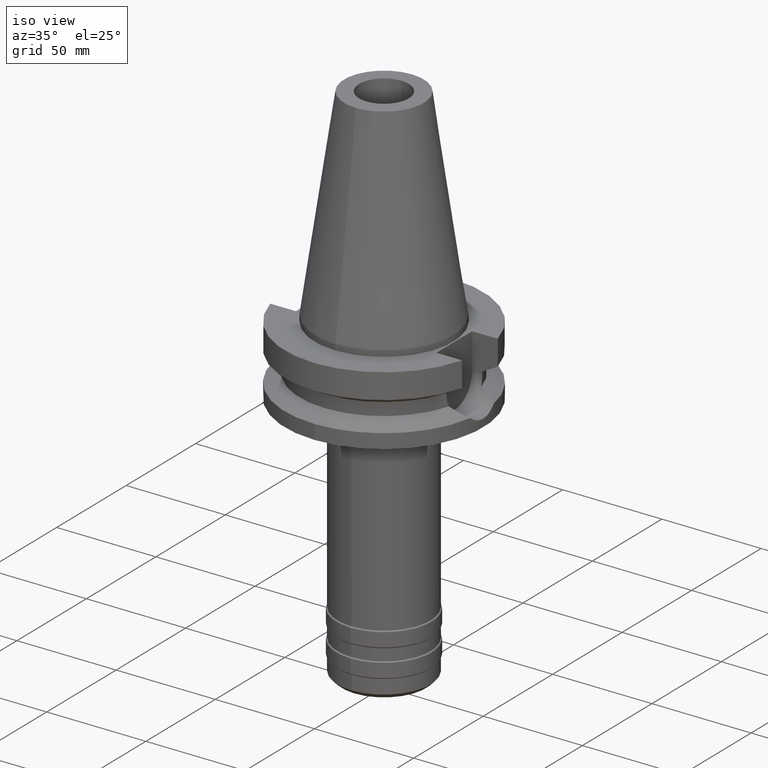
[diagram: clean part render]
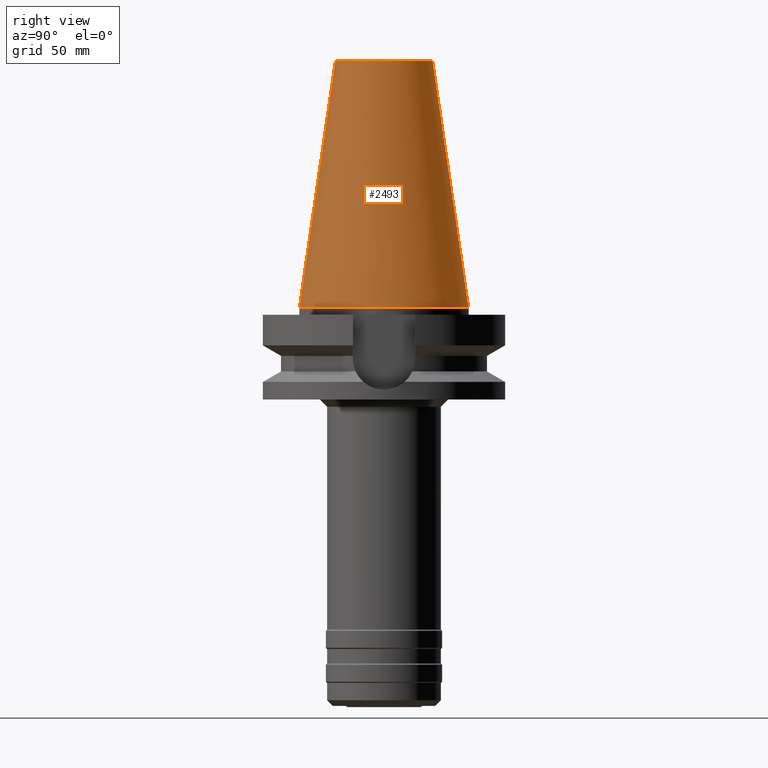
[diagram: tour spotlight — one face highlighted and labeled with its STEP entity id]
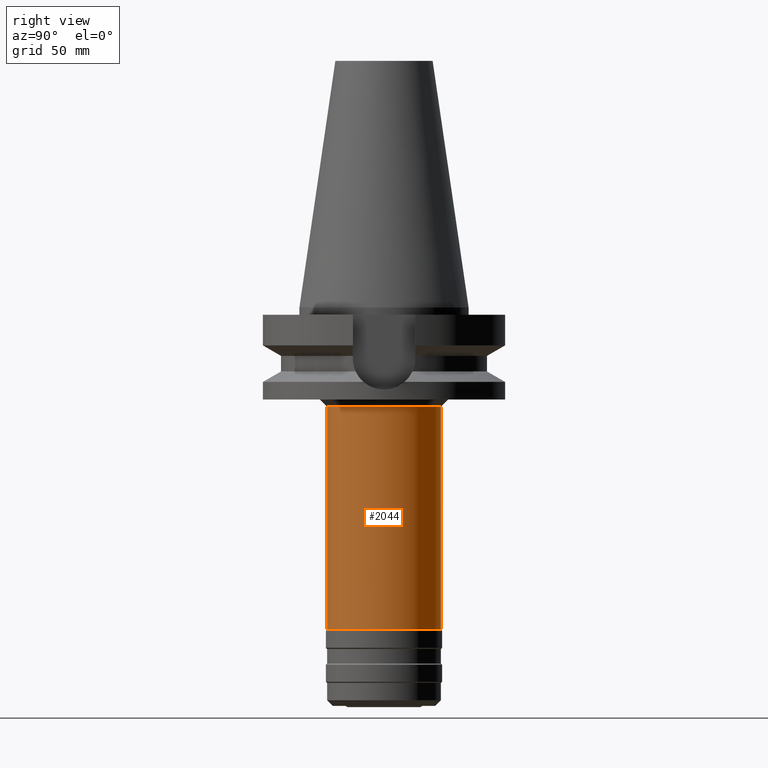
[diagram: tour spotlight — one face highlighted and labeled with its STEP entity id]
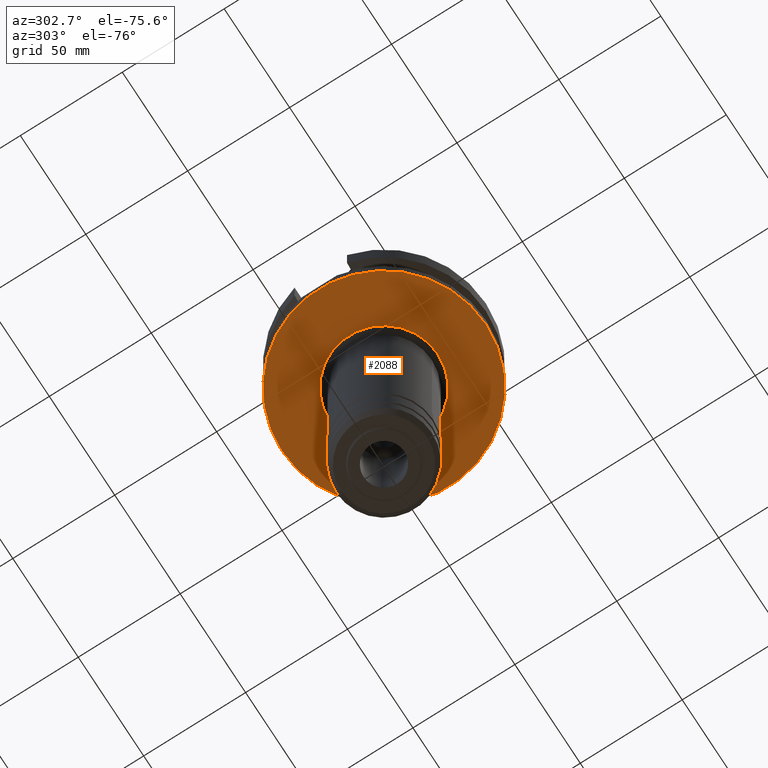
[diagram: tour spotlight — one face highlighted and labeled with its STEP entity id]
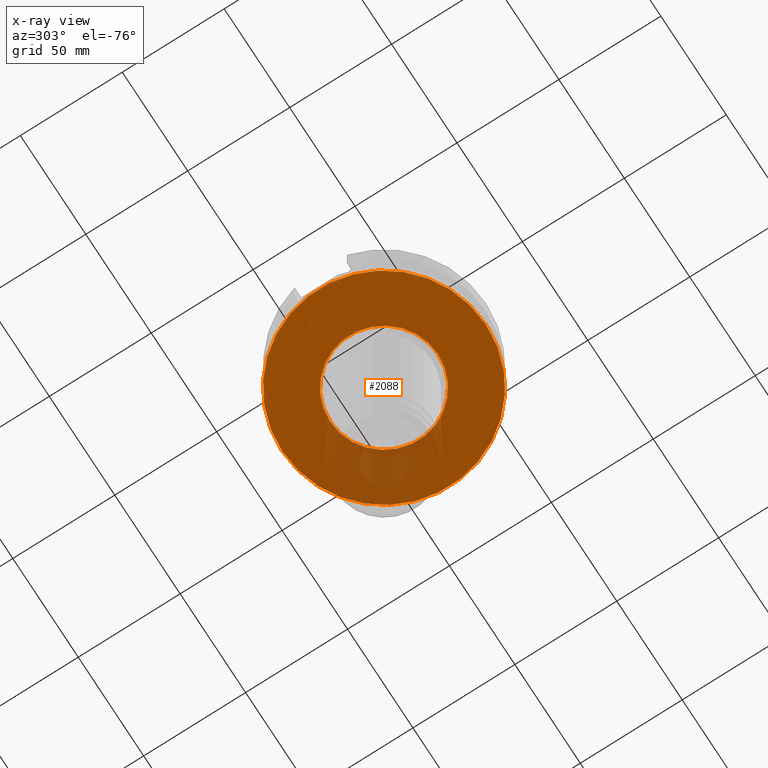
[diagram: x-ray of the same camera — body ghosted, this tour face saturated]
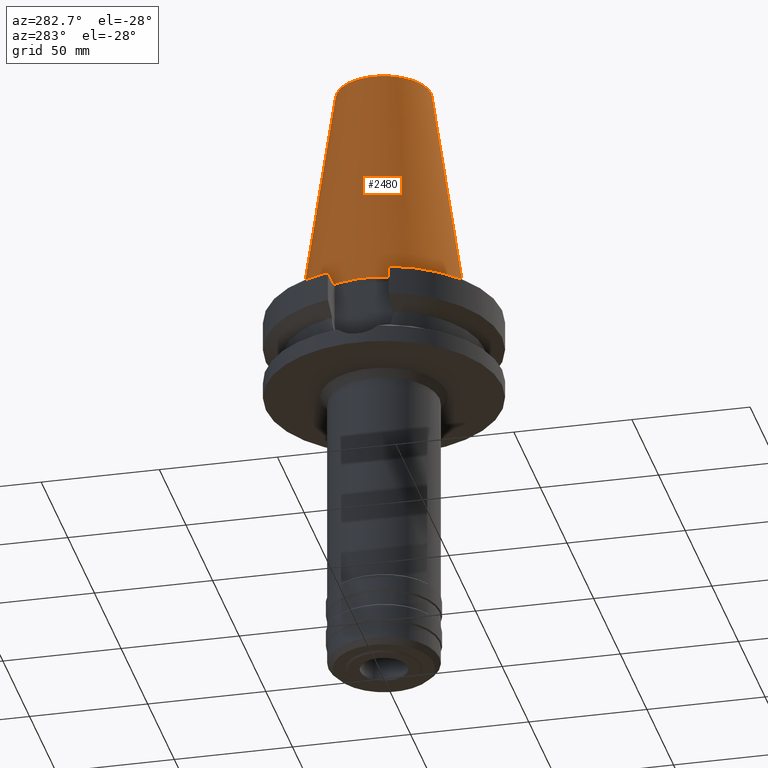
[diagram: tour spotlight — one face highlighted and labeled with its STEP entity id]
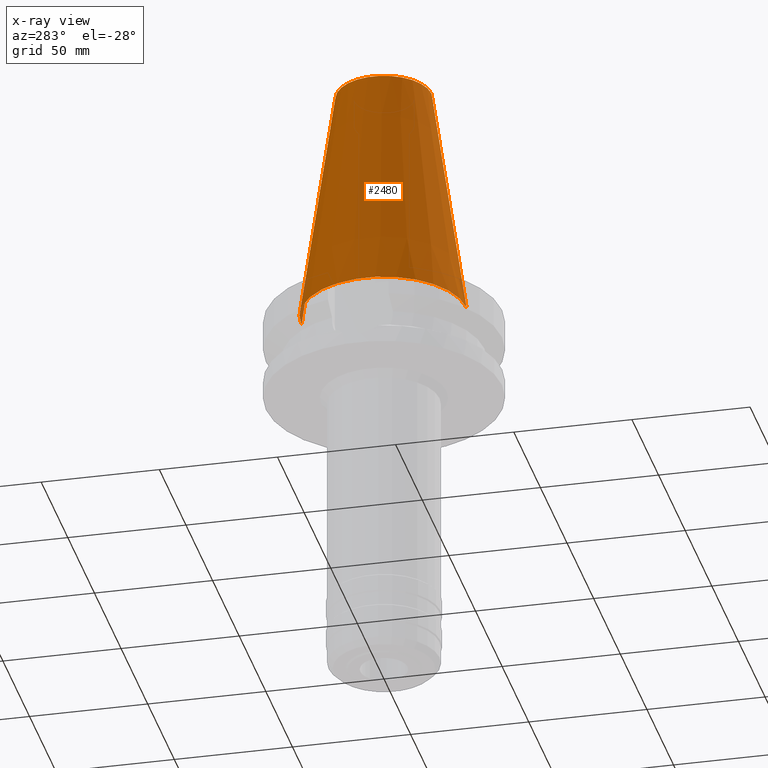
[diagram: x-ray of the same camera — body ghosted, this tour face saturated]
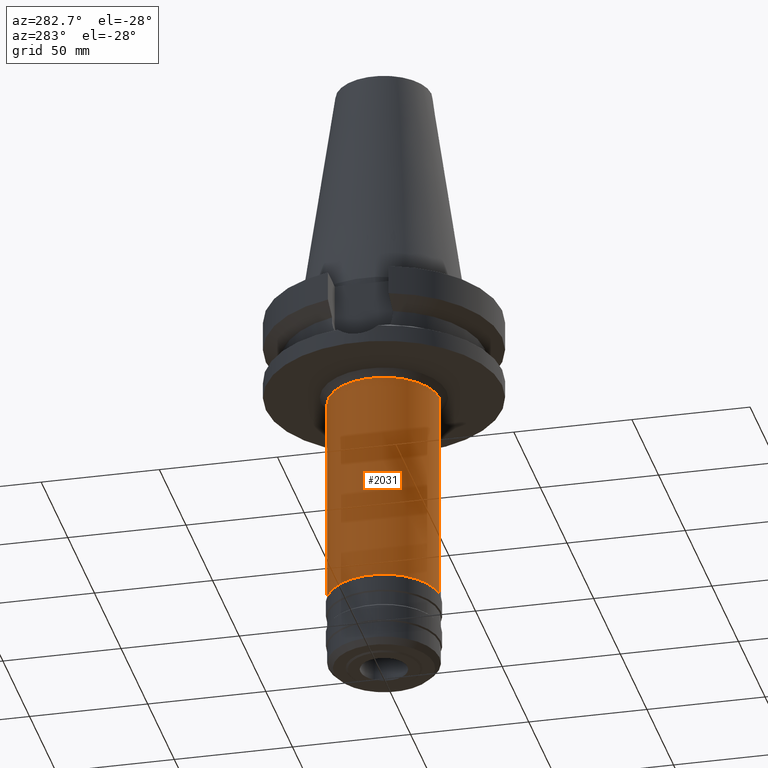
[diagram: tour spotlight — one face highlighted and labeled with its STEP entity id]
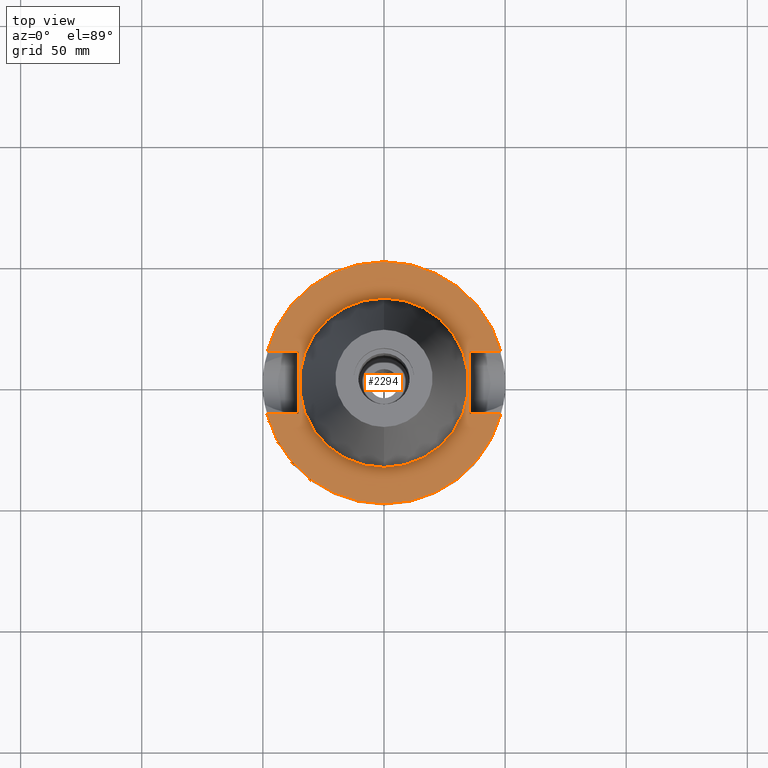
[diagram: tour spotlight — one face highlighted and labeled with its STEP entity id]
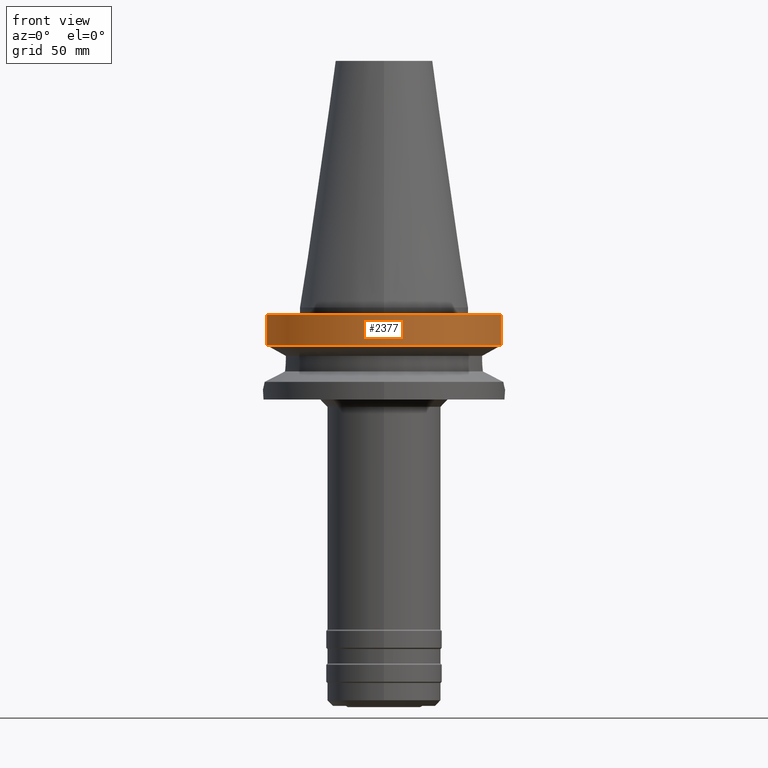
[diagram: tour spotlight — one face highlighted and labeled with its STEP entity id]
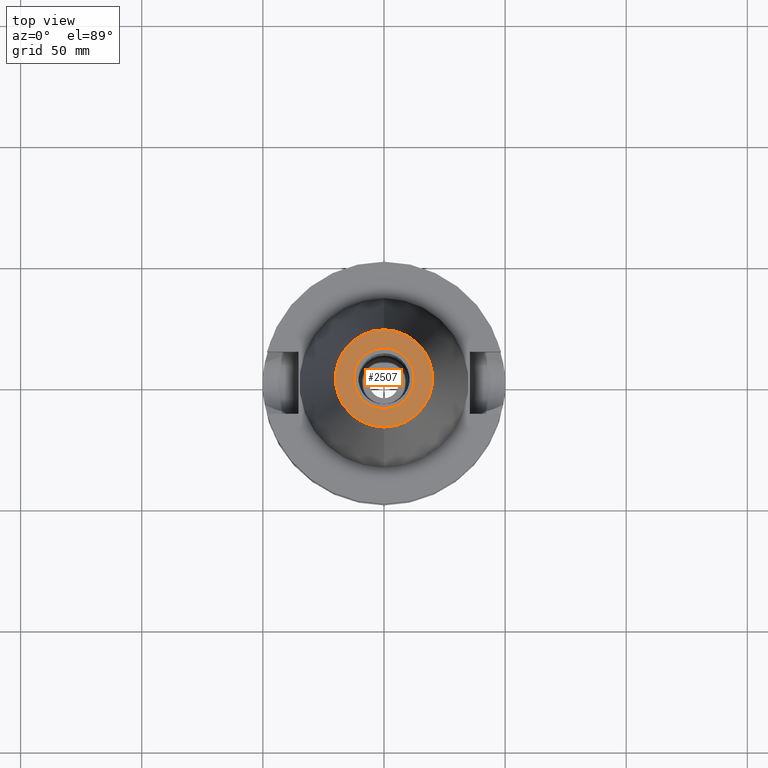
[diagram: tour spotlight — one face highlighted and labeled with its STEP entity id]
A machine part: a face-by-face anatomy tour. The part has 67 B-rep faces; the first image is the clean iso view, then the 8 largest visible faces are spotlighted one at a time (largest first), each with its STEP entity span.

Face 1 — right view, entity #2493. In plain terms, the highlighted conical surface has half-angle 8.297 deg.
Definition (entity closure, byte-faithful):
#1216=DIRECTION('',(0.E0,-1.443043893539E-1,-9.895333461856E-1));
#1217=VECTOR('',#1216,1.028767755957E2);
#1218=CARTESIAN_POINT('',(0.E0,-2.007942971896E1,1.018E2));
#1219=LINE('',#1218,#1217);
#1231=DIRECTION('',(0.E0,1.443043893539E-1,-9.895333461856E-1));
#1232=VECTOR('',#1231,1.028767755957E2);
#1233=CARTESIAN_POINT('',(0.E0,2.007942971896E1,1.018E2));
#1234=LINE('',#1233,#1232);
#1238=CARTESIAN_POINT('',(0.E0,1.847992019913E-14,6.252776074689E-13));
#1239=DIRECTION('',(0.E0,0.E0,-1.E0));
#1240=DIRECTION('',(0.E0,1.E0,0.E0));
#1241=AXIS2_PLACEMENT_3D('',#1238,#1239,#1240);
#1254=CARTESIAN_POINT('',(0.E0,1.847992019913E-14,1.018E2));
#1255=DIRECTION('',(0.E0,0.E0,-1.E0));
#1256=DIRECTION('',(0.E0,1.E0,0.E0));
#1257=AXIS2_PLACEMENT_3D('',#1254,#1255,#1256);
#1455=CARTESIAN_POINT('',(0.E0,3.4925E1,5.471179065353E-13));
#1456=VERTEX_POINT('',#1455);
#1457=CARTESIAN_POINT('',(0.E0,-3.4925E1,5.471179065353E-13));
#1458=VERTEX_POINT('',#1457);
#1459=CARTESIAN_POINT('',(0.E0,2.007942971896E1,1.018E2));
#1460=VERTEX_POINT('',#1459);
#1461=CARTESIAN_POINT('',(0.E0,-2.007942971896E1,1.018E2));
#1462=VERTEX_POINT('',#1461);
#2481=CARTESIAN_POINT('',(0.E0,1.847992019913E-14,5.09E1));
#2482=DIRECTION('',(0.E0,0.E0,-1.E0));
#2483=DIRECTION('',(0.E0,-1.E0,0.E0));
#2484=AXIS2_PLACEMENT_3D('',#2481,#2482,#2483);
#2485=CONICAL_SURFACE('',#2484,2.750221485948E1,8.297E0);
#2486=ORIENTED_EDGE('',*,*,#2471,.T.);
#2487=ORIENTED_EDGE('',*,*,#2448,.T.);
#2488=ORIENTED_EDGE('',*,*,#2475,.F.);
#2490=ORIENTED_EDGE('',*,*,#2489,.F.);
#2491=EDGE_LOOP('',(#2486,#2487,#2488,#2490));
#2492=FACE_OUTER_BOUND('',#2491,.F.);
#1242=CIRCLE('',#1241,3.4925E1);
#1258=CIRCLE('',#1257,2.007942971896E1);
#2448=EDGE_CURVE('',#1456,#1458,#1242,.T.);
#2471=EDGE_CURVE('',#1460,#1456,#1234,.T.);
#2475=EDGE_CURVE('',#1462,#1458,#1219,.T.);
#2489=EDGE_CURVE('',#1460,#1462,#1258,.T.);
#2493=ADVANCED_FACE('',(#2492),#2485,.T.);

Face 2 — right view, entity #2044. In plain terms, the highlighted cylindrical surface (partial cylindrical patch) has radius 23.5 mm, axis along (0, 0, -1).
Definition (entity closure, byte-faithful):
#563=CARTESIAN_POINT('',(0.E0,0.E0,-1.33E2));
#564=DIRECTION('',(0.E0,0.E0,1.E0));
#565=DIRECTION('',(0.E0,-1.E0,0.E0));
#566=AXIS2_PLACEMENT_3D('',#563,#564,#565);
#594=DIRECTION('',(0.E0,0.E0,-1.E0));
#595=VECTOR('',#594,9.2E1);
#596=CARTESIAN_POINT('',(0.E0,-2.35E1,-4.1E1));
#597=LINE('',#596,#595);
#601=DIRECTION('',(0.E0,0.E0,-1.E0));
#602=VECTOR('',#601,9.2E1);
#603=CARTESIAN_POINT('',(0.E0,2.35E1,-4.1E1));
#604=LINE('',#603,#602);
#615=CARTESIAN_POINT('',(0.E0,0.E0,-4.1E1));
#616=DIRECTION('',(0.E0,0.E0,-1.E0));
#617=DIRECTION('',(0.E0,1.E0,0.E0));
#618=AXIS2_PLACEMENT_3D('',#615,#616,#617);
#1366=CARTESIAN_POINT('',(0.E0,2.35E1,-1.33E2));
#1367=VERTEX_POINT('',#1366);
#1368=CARTESIAN_POINT('',(0.E0,-2.35E1,-1.33E2));
#1369=VERTEX_POINT('',#1368);
#1370=CARTESIAN_POINT('',(0.E0,2.35E1,-4.1E1));
#1371=VERTEX_POINT('',#1370);
#1372=CARTESIAN_POINT('',(0.E0,-2.35E1,-4.1E1));
#1373=VERTEX_POINT('',#1372);
#2032=CARTESIAN_POINT('',(0.E0,2.634705123686E-14,1.1514E2));
#2033=DIRECTION('',(0.E0,0.E0,-1.E0));
#2034=DIRECTION('',(0.E0,-1.E0,0.E0));
#2035=AXIS2_PLACEMENT_3D('',#2032,#2033,#2034);
#2036=CYLINDRICAL_SURFACE('',#2035,2.35E1);
#2037=ORIENTED_EDGE('',*,*,#2022,.T.);
#2038=ORIENTED_EDGE('',*,*,#1999,.F.);
#2039=ORIENTED_EDGE('',*,*,#2026,.F.);
#2041=ORIENTED_EDGE('',*,*,#2040,.F.);
#2042=EDGE_LOOP('',(#2037,#2038,#2039,#2041));
#2043=FACE_OUTER_BOUND('',#2042,.F.);
#567=CIRCLE('',#566,2.35E1);
#619=CIRCLE('',#618,2.35E1);
#1999=EDGE_CURVE('',#1369,#1367,#567,.T.);
#2022=EDGE_CURVE('',#1371,#1367,#604,.T.);
#2026=EDGE_CURVE('',#1373,#1369,#597,.T.);
#2040=EDGE_CURVE('',#1371,#1373,#619,.T.);
#2044=ADVANCED_FACE('',(#2043),#2036,.T.);

Face 3 — auxiliary view, entity #2088. An x-ray twin of the same camera follows (body ghosted, this face saturated) — the face is partly hidden behind the body. In plain terms, the highlighted planar face has unit normal (0, 0, -1).
Definition (entity closure, byte-faithful):
#638=CARTESIAN_POINT('',(0.E0,2.634705123686E-14,-3.8E1));
#639=DIRECTION('',(0.E0,0.E0,1.E0));
#640=DIRECTION('',(0.E0,-1.E0,0.E0));
#641=AXIS2_PLACEMENT_3D('',#638,#639,#640);
#646=CARTESIAN_POINT('',(0.E0,2.634705123686E-14,-3.8E1));
#647=DIRECTION('',(0.E0,0.E0,1.E0));
#648=DIRECTION('',(0.E0,1.E0,0.E0));
#649=AXIS2_PLACEMENT_3D('',#646,#647,#648);
#654=CARTESIAN_POINT('',(0.E0,0.E0,-3.8E1));
#655=DIRECTION('',(0.E0,0.E0,-1.E0));
#656=DIRECTION('',(0.E0,-1.E0,0.E0));
#657=AXIS2_PLACEMENT_3D('',#654,#655,#656);
#662=CARTESIAN_POINT('',(0.E0,0.E0,-3.8E1));
#663=DIRECTION('',(0.E0,0.E0,-1.E0));
#664=DIRECTION('',(0.E0,1.E0,0.E0));
#665=AXIS2_PLACEMENT_3D('',#662,#663,#664);
#1374=CARTESIAN_POINT('',(0.E0,2.65E1,-3.8E1));
#1375=VERTEX_POINT('',#1374);
#1376=CARTESIAN_POINT('',(0.E0,-2.65E1,-3.8E1));
#1377=VERTEX_POINT('',#1376);
#1378=CARTESIAN_POINT('',(0.E0,-5.E1,-3.8E1));
#1379=CARTESIAN_POINT('',(0.E0,5.E1,-3.8E1));
#1380=VERTEX_POINT('',#1378);
#1381=VERTEX_POINT('',#1379);
#2073=CARTESIAN_POINT('',(0.E0,0.E0,-3.8E1));
#2074=DIRECTION('',(0.E0,0.E0,-1.E0));
#2075=DIRECTION('',(0.E0,-1.E0,0.E0));
#2076=AXIS2_PLACEMENT_3D('',#2073,#2074,#2075);
#2077=PLANE('',#2076);
#2079=ORIENTED_EDGE('',*,*,#2078,.T.);
#2081=ORIENTED_EDGE('',*,*,#2080,.T.);
#2082=EDGE_LOOP('',(#2079,#2081));
#2083=FACE_OUTER_BOUND('',#2082,.F.);
#2084=ORIENTED_EDGE('',*,*,#2066,.T.);
#2085=ORIENTED_EDGE('',*,*,#2055,.T.);
#2086=EDGE_LOOP('',(#2084,#2085));
#2087=FACE_BOUND('',#2086,.F.);
#642=CIRCLE('',#641,5.E1);
#650=CIRCLE('',#649,5.E1);
#658=CIRCLE('',#657,2.65E1);
#666=CIRCLE('',#665,2.65E1);
#2055=EDGE_CURVE('',#1375,#1377,#666,.T.);
#2066=EDGE_CURVE('',#1377,#1375,#658,.T.);
#2078=EDGE_CURVE('',#1380,#1381,#642,.T.);
#2080=EDGE_CURVE('',#1381,#1380,#650,.T.);
#2088=ADVANCED_FACE('',(#2083,#2087),#2077,.T.);

Face 4 — auxiliary view, entity #2480. An x-ray twin of the same camera follows (body ghosted, this face saturated) — the face is partly hidden behind the body. In plain terms, the highlighted conical surface has half-angle 8.297 deg.
Definition (entity closure, byte-faithful):
#1216=DIRECTION('',(0.E0,-1.443043893539E-1,-9.895333461856E-1));
#1217=VECTOR('',#1216,1.028767755957E2);
#1218=CARTESIAN_POINT('',(0.E0,-2.007942971896E1,1.018E2));
#1219=LINE('',#1218,#1217);
#1223=CARTESIAN_POINT('',(0.E0,1.847992019913E-14,6.252776074689E-13));
#1224=DIRECTION('',(0.E0,0.E0,-1.E0));
#1225=DIRECTION('',(0.E0,-1.E0,0.E0));
#1226=AXIS2_PLACEMENT_3D('',#1223,#1224,#1225);
#1231=DIRECTION('',(0.E0,1.443043893539E-1,-9.895333461856E-1));
#1232=VECTOR('',#1231,1.028767755957E2);
#1233=CARTESIAN_POINT('',(0.E0,2.007942971896E1,1.018E2));
#1234=LINE('',#1233,#1232);
#1246=CARTESIAN_POINT('',(0.E0,1.847992019913E-14,1.018E2));
#1247=DIRECTION('',(0.E0,0.E0,-1.E0));
#1248=DIRECTION('',(0.E0,-1.E0,0.E0));
#1249=AXIS2_PLACEMENT_3D('',#1246,#1247,#1248);
#1455=CARTESIAN_POINT('',(0.E0,3.4925E1,5.471179065353E-13));
#1456=VERTEX_POINT('',#1455);
#1457=CARTESIAN_POINT('',(0.E0,-3.4925E1,5.471179065353E-13));
#1458=VERTEX_POINT('',#1457);
#1459=CARTESIAN_POINT('',(0.E0,2.007942971896E1,1.018E2));
#1460=VERTEX_POINT('',#1459);
#1461=CARTESIAN_POINT('',(0.E0,-2.007942971896E1,1.018E2));
#1462=VERTEX_POINT('',#1461);
#2466=CARTESIAN_POINT('',(0.E0,1.847992019913E-14,5.09E1));
#2467=DIRECTION('',(0.E0,0.E0,-1.E0));
#2468=DIRECTION('',(0.E0,-1.E0,0.E0));
#2469=AXIS2_PLACEMENT_3D('',#2466,#2467,#2468);
#2470=CONICAL_SURFACE('',#2469,2.750221485948E1,8.297E0);
#2472=ORIENTED_EDGE('',*,*,#2471,.F.);
#2474=ORIENTED_EDGE('',*,*,#2473,.F.);
#2476=ORIENTED_EDGE('',*,*,#2475,.T.);
#2477=ORIENTED_EDGE('',*,*,#2459,.T.);
#2478=EDGE_LOOP('',(#2472,#2474,#2476,#2477));
#2479=FACE_OUTER_BOUND('',#2478,.F.);
#1227=CIRCLE('',#1226,3.4925E1);
#1250=CIRCLE('',#1249,2.007942971896E1);
#2459=EDGE_CURVE('',#1458,#1456,#1227,.T.);
#2471=EDGE_CURVE('',#1460,#1456,#1234,.T.);
#2473=EDGE_CURVE('',#1462,#1460,#1250,.T.);
#2475=EDGE_CURVE('',#1462,#1458,#1219,.T.);
#2480=ADVANCED_FACE('',(#2479),#2470,.T.);

Face 5 — auxiliary view, entity #2031. In plain terms, the highlighted cylindrical surface (partial cylindrical patch) has radius 23.5 mm, axis along (0, 0, -1).
Definition (entity closure, byte-faithful):
#571=CARTESIAN_POINT('',(0.E0,0.E0,-1.33E2));
#572=DIRECTION('',(0.E0,0.E0,1.E0));
#573=DIRECTION('',(0.E0,1.E0,0.E0));
#574=AXIS2_PLACEMENT_3D('',#571,#572,#573);
#594=DIRECTION('',(0.E0,0.E0,-1.E0));
#595=VECTOR('',#594,9.2E1);
#596=CARTESIAN_POINT('',(0.E0,-2.35E1,-4.1E1));
#597=LINE('',#596,#595);
#601=DIRECTION('',(0.E0,0.E0,-1.E0));
#602=VECTOR('',#601,9.2E1);
#603=CARTESIAN_POINT('',(0.E0,2.35E1,-4.1E1));
#604=LINE('',#603,#602);
#630=CARTESIAN_POINT('',(0.E0,0.E0,-4.1E1));
#631=DIRECTION('',(0.E0,0.E0,-1.E0));
#632=DIRECTION('',(0.E0,-1.E0,0.E0));
#633=AXIS2_PLACEMENT_3D('',#630,#631,#632);
#1366=CARTESIAN_POINT('',(0.E0,2.35E1,-1.33E2));
#1367=VERTEX_POINT('',#1366);
#1368=CARTESIAN_POINT('',(0.E0,-2.35E1,-1.33E2));
#1369=VERTEX_POINT('',#1368);
#1370=CARTESIAN_POINT('',(0.E0,2.35E1,-4.1E1));
#1371=VERTEX_POINT('',#1370);
#1372=CARTESIAN_POINT('',(0.E0,-2.35E1,-4.1E1));
#1373=VERTEX_POINT('',#1372);
#2017=CARTESIAN_POINT('',(0.E0,2.634705123686E-14,1.1514E2));
#2018=DIRECTION('',(0.E0,0.E0,-1.E0));
#2019=DIRECTION('',(0.E0,-1.E0,0.E0));
#2020=AXIS2_PLACEMENT_3D('',#2017,#2018,#2019);
#2021=CYLINDRICAL_SURFACE('',#2020,2.35E1);
#2023=ORIENTED_EDGE('',*,*,#2022,.F.);
#2025=ORIENTED_EDGE('',*,*,#2024,.F.);
#2027=ORIENTED_EDGE('',*,*,#2026,.T.);
#2028=ORIENTED_EDGE('',*,*,#2010,.F.);
#2029=EDGE_LOOP('',(#2023,#2025,#2027,#2028));
#2030=FACE_OUTER_BOUND('',#2029,.F.);
#575=CIRCLE('',#574,2.35E1);
#634=CIRCLE('',#633,2.35E1);
#2010=EDGE_CURVE('',#1367,#1369,#575,.T.);
#2022=EDGE_CURVE('',#1371,#1367,#604,.T.);
#2024=EDGE_CURVE('',#1373,#1371,#634,.T.);
#2026=EDGE_CURVE('',#1373,#1369,#597,.T.);
#2031=ADVANCED_FACE('',(#2030),#2021,.T.);

Face 6 — top view, entity #2294. In plain terms, the highlighted planar face has unit normal (0, 0, -1).
Definition (entity closure, byte-faithful):
#886=DIRECTION('',(1.E0,0.E0,0.E0));
#887=VECTOR('',#886,1.292057015392E1);
#888=CARTESIAN_POINT('',(3.54E1,1.285E1,-3.E0));
#889=LINE('',#888,#887);
#933=DIRECTION('',(0.E0,1.E0,0.E0));
#934=VECTOR('',#933,2.57E1);
#935=CARTESIAN_POINT('',(-3.54E1,-1.285E1,-3.E0));
#936=LINE('',#935,#934);
#940=DIRECTION('',(-1.E0,0.E0,0.E0));
#941=VECTOR('',#940,1.292057015392E1);
#942=CARTESIAN_POINT('',(-3.54E1,1.285E1,-3.E0));
#943=LINE('',#942,#941);
#947=CARTESIAN_POINT('',(0.E0,2.634705123686E-14,-3.E0));
#948=DIRECTION('',(0.E0,0.E0,-1.E0));
#949=DIRECTION('',(-9.664114030784E-1,2.57E-1,0.E0));
#950=AXIS2_PLACEMENT_3D('',#947,#948,#949);
#955=CARTESIAN_POINT('',(0.E0,2.634705123686E-14,-3.E0));
#956=DIRECTION('',(0.E0,0.E0,-1.E0));
#957=DIRECTION('',(0.E0,1.E0,0.E0));
#958=AXIS2_PLACEMENT_3D('',#955,#956,#957);
#963=DIRECTION('',(0.E0,-1.E0,0.E0));
#964=VECTOR('',#963,2.57E1);
#965=CARTESIAN_POINT('',(3.54E1,1.285E1,-3.E0));
#966=LINE('',#965,#964);
#970=DIRECTION('',(1.E0,0.E0,0.E0));
#971=VECTOR('',#970,1.292057015392E1);
#972=CARTESIAN_POINT('',(3.54E1,-1.285E1,-3.E0));
#973=LINE('',#972,#971);
#977=CARTESIAN_POINT('',(0.E0,2.634705123686E-14,-3.E0));
#978=DIRECTION('',(0.E0,0.E0,-1.E0));
#979=DIRECTION('',(9.664114030784E-1,-2.57E-1,0.E0));
#980=AXIS2_PLACEMENT_3D('',#977,#978,#979);
#985=CARTESIAN_POINT('',(0.E0,2.634705123686E-14,-3.E0));
#986=DIRECTION('',(0.E0,0.E0,-1.E0));
#987=DIRECTION('',(0.E0,-1.E0,0.E0));
#988=AXIS2_PLACEMENT_3D('',#985,#986,#987);
#993=CARTESIAN_POINT('',(0.E0,2.634705123686E-14,-3.E0));
#994=DIRECTION('',(0.E0,0.E0,1.E0));
#995=DIRECTION('',(0.E0,-1.E0,0.E0));
#996=AXIS2_PLACEMENT_3D('',#993,#994,#995);
#1001=CARTESIAN_POINT('',(0.E0,2.634705123686E-14,-3.E0));
#1002=DIRECTION('',(0.E0,0.E0,1.E0));
#1003=DIRECTION('',(0.E0,1.E0,0.E0));
#1004=AXIS2_PLACEMENT_3D('',#1001,#1002,#1003);
#1039=DIRECTION('',(-1.E0,0.E0,0.E0));
#1040=VECTOR('',#1039,1.292057015392E1);
#1041=CARTESIAN_POINT('',(-3.54E1,-1.285E1,-3.E0));
#1042=LINE('',#1041,#1040);
#1429=CARTESIAN_POINT('',(-3.54E1,-1.285E1,-3.E0));
#1430=VERTEX_POINT('',#1429);
#1431=CARTESIAN_POINT('',(-4.832057015392E1,-1.285E1,-3.E0));
#1432=VERTEX_POINT('',#1431);
#1435=CARTESIAN_POINT('',(-3.54E1,1.285E1,-3.E0));
#1436=VERTEX_POINT('',#1435);
#1437=CARTESIAN_POINT('',(-4.832057015392E1,1.285E1,-3.E0));
#1438=VERTEX_POINT('',#1437);
#1439=CARTESIAN_POINT('',(-1.065814103640E-14,5.E1,-3.E0));
#1440=CARTESIAN_POINT('',(4.832057015392E1,1.285E1,-3.E0));
#1441=VERTEX_POINT('',#1439);
#1442=VERTEX_POINT('',#1440);
#1443=CARTESIAN_POINT('',(3.54E1,1.285E1,-3.E0));
#1444=VERTEX_POINT('',#1443);
#1445=CARTESIAN_POINT('',(3.54E1,-1.285E1,-3.E0));
#1446=VERTEX_POINT('',#1445);
#1447=CARTESIAN_POINT('',(4.832057015392E1,-1.285E1,-3.E0));
#1448=VERTEX_POINT('',#1447);
#1449=CARTESIAN_POINT('',(1.065814103640E-14,-5.E1,-3.E0));
#1450=VERTEX_POINT('',#1449);
#1451=CARTESIAN_POINT('',(0.E0,-3.4925E1,-3.E0));
#1452=CARTESIAN_POINT('',(0.E0,3.4925E1,-3.E0));
#1453=VERTEX_POINT('',#1451);
#1454=VERTEX_POINT('',#1452);
#2263=CARTESIAN_POINT('',(0.E0,1.187907395173E-14,-3.E0));
#2264=DIRECTION('',(0.E0,0.E0,-1.E0));
#2265=DIRECTION('',(0.E0,-1.E0,0.E0));
#2266=AXIS2_PLACEMENT_3D('',#2263,#2264,#2265);
#2267=PLANE('',#2266);
#2269=ORIENTED_EDGE('',*,*,#2268,.T.);
#2271=ORIENTED_EDGE('',*,*,#2270,.T.);
#2273=ORIENTED_EDGE('',*,*,#2272,.T.);
#2275=ORIENTED_EDGE('',*,*,#2274,.T.);
#2276=ORIENTED_EDGE('',*,*,#2239,.F.);
#2277=ORIENTED_EDGE('',*,*,#2253,.T.);
#2279=ORIENTED_EDGE('',*,*,#2278,.T.);
#2281=ORIENTED_EDGE('',*,*,#2280,.T.);
#2283=ORIENTED_EDGE('',*,*,#2282,.T.);
#2285=ORIENTED_EDGE('',*,*,#2284,.F.);
#2286=EDGE_LOOP('',(#2269,#2271,#2273,#2275,#2276,#2277,#2279,#2281,#2283,
#2285));
#2287=FACE_OUTER_BOUND('',#2286,.F.);
#2289=ORIENTED_EDGE('',*,*,#2288,.T.);
#2291=ORIENTED_EDGE('',*,*,#2290,.T.);
#2292=EDGE_LOOP('',(#2289,#2291));
#2293=FACE_BOUND('',#2292,.F.);
#951=CIRCLE('',#950,5.E1);
#959=CIRCLE('',#958,5.E1);
#981=CIRCLE('',#980,5.E1);
#989=CIRCLE('',#988,5.E1);
#997=CIRCLE('',#996,3.4925E1);
#1005=CIRCLE('',#1004,3.4925E1);
#2239=EDGE_CURVE('',#1444,#1442,#889,.T.);
#2253=EDGE_CURVE('',#1444,#1446,#966,.T.);
#2268=EDGE_CURVE('',#1430,#1436,#936,.T.);
#2270=EDGE_CURVE('',#1436,#1438,#943,.T.);
#2272=EDGE_CURVE('',#1438,#1441,#951,.T.);
#2274=EDGE_CURVE('',#1441,#1442,#959,.T.);
#2278=EDGE_CURVE('',#1446,#1448,#973,.T.);
#2280=EDGE_CURVE('',#1448,#1450,#981,.T.);
#2282=EDGE_CURVE('',#1450,#1432,#989,.T.);
#2284=EDGE_CURVE('',#1430,#1432,#1042,.T.);
#2288=EDGE_CURVE('',#1453,#1454,#997,.T.);
#2290=EDGE_CURVE('',#1454,#1453,#1005,.T.);
#2294=ADVANCED_FACE('',(#2287,#2293),#2267,.F.);

Face 7 — front view, entity #2377. In plain terms, the highlighted cylindrical surface (partial cylindrical patch) has radius 50 mm, axis along (0, 0, -1).
Definition (entity closure, byte-faithful):
#977=CARTESIAN_POINT('',(0.E0,2.634705123686E-14,-3.E0));
#978=DIRECTION('',(0.E0,0.E0,-1.E0));
#979=DIRECTION('',(9.664114030784E-1,-2.57E-1,0.E0));
#980=AXIS2_PLACEMENT_3D('',#977,#978,#979);
#985=CARTESIAN_POINT('',(0.E0,2.634705123686E-14,-3.E0));
#986=DIRECTION('',(0.E0,0.E0,-1.E0));
#987=DIRECTION('',(0.E0,-1.E0,0.E0));
#988=AXIS2_PLACEMENT_3D('',#985,#986,#987);
#1090=CARTESIAN_POINT('',(0.E0,1.006319759054E-14,-1.566269223573E1));
#1091=DIRECTION('',(0.E0,0.E0,1.E0));
#1092=DIRECTION('',(-9.664114030784E-1,-2.57E-1,0.E0));
#1093=AXIS2_PLACEMENT_3D('',#1090,#1091,#1092);
#1098=CARTESIAN_POINT('',(0.E0,1.006319759054E-14,-1.566269223573E1));
#1099=DIRECTION('',(0.E0,0.E0,1.E0));
#1100=DIRECTION('',(0.E0,-1.E0,0.E0));
#1101=AXIS2_PLACEMENT_3D('',#1098,#1099,#1100);
#1122=DIRECTION('',(-8.100800697241E-8,3.046187202871E-7,1.E0));
#1123=VECTOR('',#1122,1.266265768251E1);
#1124=CARTESIAN_POINT('',(-4.832056912814E1,-1.285000385728E1,
-1.566265768251E1));
#1125=LINE('',#1124,#1123);
#1129=DIRECTION('',(-8.103519278861E-8,-3.047209459814E-7,-1.E0));
#1130=VECTOR('',#1129,1.266265767091E1);
#1131=CARTESIAN_POINT('',(4.832057015392E1,-1.285E1,-3.E0));
#1132=LINE('',#1131,#1130);
#1431=CARTESIAN_POINT('',(-4.832057015392E1,-1.285E1,-3.E0));
#1432=VERTEX_POINT('',#1431);
#1433=CARTESIAN_POINT('',(-4.832056912814E1,-1.285000385728E1,
-1.566265768251E1));
#1434=VERTEX_POINT('',#1433);
#1447=CARTESIAN_POINT('',(4.832057015392E1,-1.285E1,-3.E0));
#1448=VERTEX_POINT('',#1447);
#1449=CARTESIAN_POINT('',(1.065814103640E-14,-5.E1,-3.E0));
#1450=VERTEX_POINT('',#1449);
#1464=CARTESIAN_POINT('',(0.E0,-5.E1,-1.566269223573E1));
#1465=CARTESIAN_POINT('',(4.832057015392E1,-1.285E1,-1.566269223573E1));
#1466=VERTEX_POINT('',#1464);
#1467=VERTEX_POINT('',#1465);
#2363=CARTESIAN_POINT('',(0.E0,2.634705123686E-14,1.1514E2));
#2364=DIRECTION('',(0.E0,0.E0,-1.E0));
#2365=DIRECTION('',(0.E0,-1.E0,0.E0));
#2366=AXIS2_PLACEMENT_3D('',#2363,#2364,#2365);
#2367=CYLINDRICAL_SURFACE('',#2366,5.E1);
#2368=ORIENTED_EDGE('',*,*,#2320,.T.);
#2369=ORIENTED_EDGE('',*,*,#2282,.F.);
#2370=ORIENTED_EDGE('',*,*,#2280,.F.);
#2372=ORIENTED_EDGE('',*,*,#2371,.T.);
#2373=ORIENTED_EDGE('',*,*,#2354,.F.);
#2374=ORIENTED_EDGE('',*,*,#2352,.F.);
#2375=EDGE_LOOP('',(#2368,#2369,#2370,#2372,#2373,#2374));
#2376=FACE_OUTER_BOUND('',#2375,.F.);
#981=CIRCLE('',#980,5.E1);
#989=CIRCLE('',#988,5.E1);
#1094=CIRCLE('',#1093,5.E1);
#1102=CIRCLE('',#1101,5.E1);
#2280=EDGE_CURVE('',#1448,#1450,#981,.T.);
#2282=EDGE_CURVE('',#1450,#1432,#989,.T.);
#2320=EDGE_CURVE('',#1434,#1432,#1125,.T.);
#2352=EDGE_CURVE('',#1434,#1466,#1094,.T.);
#2354=EDGE_CURVE('',#1466,#1467,#1102,.T.);
#2371=EDGE_CURVE('',#1448,#1467,#1132,.T.);
#2377=ADVANCED_FACE('',(#2376),#2367,.T.);

Face 8 — top view, entity #2507. In plain terms, the highlighted planar face has unit normal (0, 0, -1).
Definition (entity closure, byte-faithful):
#1246=CARTESIAN_POINT('',(0.E0,1.847992019913E-14,1.018E2));
#1247=DIRECTION('',(0.E0,0.E0,-1.E0));
#1248=DIRECTION('',(0.E0,-1.E0,0.E0));
#1249=AXIS2_PLACEMENT_3D('',#1246,#1247,#1248);
#1254=CARTESIAN_POINT('',(0.E0,1.847992019913E-14,1.018E2));
#1255=DIRECTION('',(0.E0,0.E0,-1.E0));
#1256=DIRECTION('',(0.E0,1.E0,0.E0));
#1257=AXIS2_PLACEMENT_3D('',#1254,#1255,#1256);
#1262=CARTESIAN_POINT('',(0.E0,2.634705123686E-14,1.018E2));
#1263=DIRECTION('',(0.E0,0.E0,1.E0));
#1264=DIRECTION('',(0.E0,-1.E0,0.E0));
#1265=AXIS2_PLACEMENT_3D('',#1262,#1263,#1264);
#1270=CARTESIAN_POINT('',(0.E0,2.634705123686E-14,1.018E2));
#1271=DIRECTION('',(0.E0,0.E0,1.E0));
#1272=DIRECTION('',(0.E0,1.E0,0.E0));
#1273=AXIS2_PLACEMENT_3D('',#1270,#1271,#1272);
#1279=CARTESIAN_POINT('',(0.E0,1.25E1,1.018E2));
#1281=VERTEX_POINT('',#1279);
#1282=CARTESIAN_POINT('',(0.E0,-1.25E1,1.018E2));
#1283=VERTEX_POINT('',#1282);
#1459=CARTESIAN_POINT('',(0.E0,2.007942971896E1,1.018E2));
#1460=VERTEX_POINT('',#1459);
#1461=CARTESIAN_POINT('',(0.E0,-2.007942971896E1,1.018E2));
#1462=VERTEX_POINT('',#1461);
#2494=CARTESIAN_POINT('',(0.E0,2.471337240679E-14,1.018E2));
#2495=DIRECTION('',(0.E0,0.E0,-1.E0));
#2496=DIRECTION('',(0.E0,-1.E0,0.E0));
#2497=AXIS2_PLACEMENT_3D('',#2494,#2495,#2496);
#2498=PLANE('',#2497);
#2499=ORIENTED_EDGE('',*,*,#2473,.T.);
#2500=ORIENTED_EDGE('',*,*,#2489,.T.);
#2501=EDGE_LOOP('',(#2499,#2500));
#2502=FACE_OUTER_BOUND('',#2501,.F.);
#2503=ORIENTED_EDGE('',*,*,#1478,.T.);
#2504=ORIENTED_EDGE('',*,*,#1496,.T.);
#2505=EDGE_LOOP('',(#2503,#2504));
#2506=FACE_BOUND('',#2505,.F.);
#1250=CIRCLE('',#1249,2.007942971896E1);
#1258=CIRCLE('',#1257,2.007942971896E1);
#1266=CIRCLE('',#1265,1.25E1);
#1274=CIRCLE('',#1273,1.25E1);
#1478=EDGE_CURVE('',#1283,#1281,#1266,.T.);
#1496=EDGE_CURVE('',#1281,#1283,#1274,.T.);
#2473=EDGE_CURVE('',#1462,#1460,#1250,.T.);
#2489=EDGE_CURVE('',#1460,#1462,#1258,.T.);
#2507=ADVANCED_FACE('',(#2502,#2506),#2498,.F.);